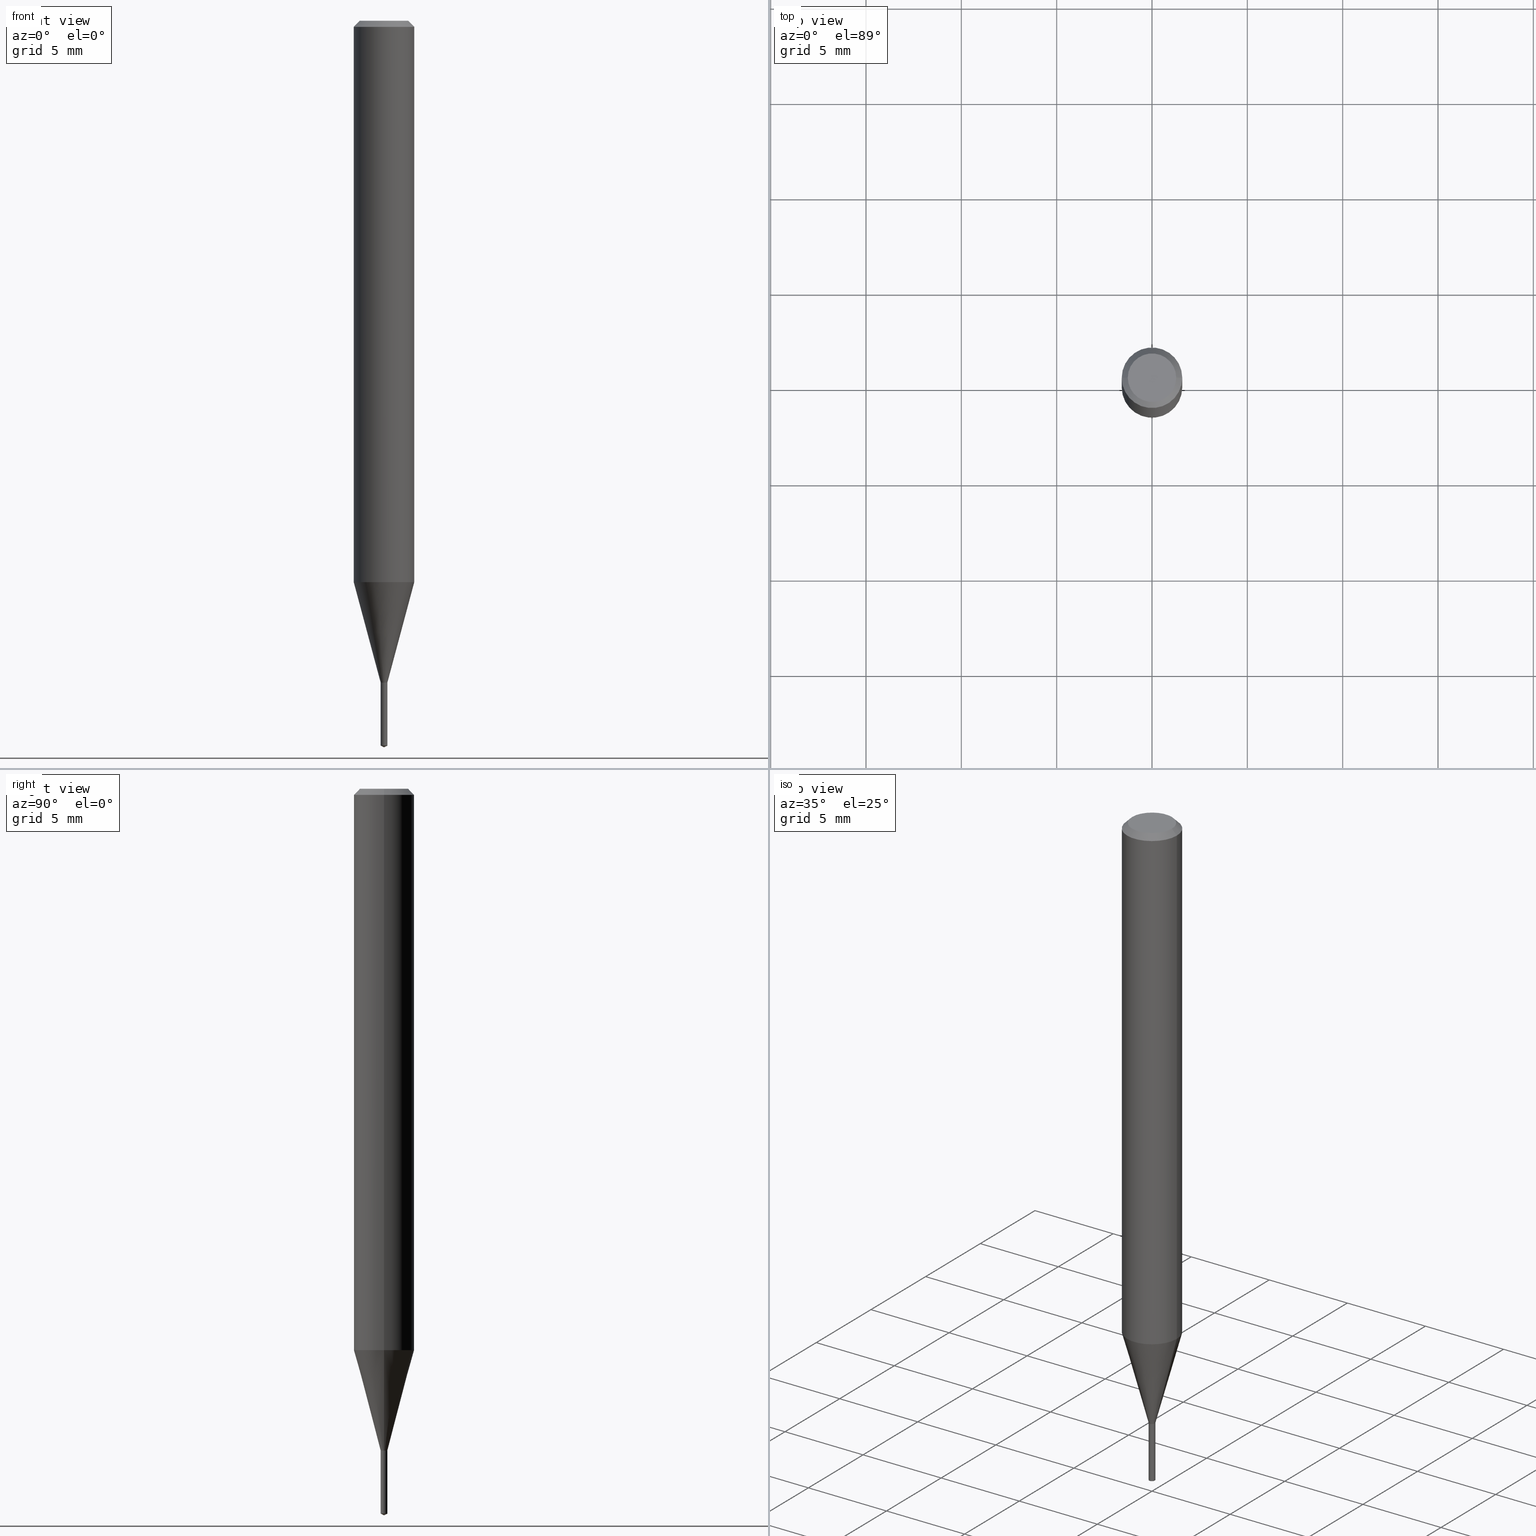
[diagram: canonical four-view strip — front | top / right | iso, engineering-drawing reading convention]
A machine part, canonical four-view strip (front | top / right | iso — engineering-drawing reading convention). The complete STEP part file that produces these views, byte-faithful:
ISO-10303-21;
HEADER;
FILE_DESCRIPTION (( 'STEP AP203' ),
    '1' );
FILE_NAME ('07119.STEP',
    '2024-04-23T19:33:58',
    ( '' ),
    ( '' ),
    'SwSTEP 2.0',
    'SolidWorks 2023',
    '' );
FILE_SCHEMA (( 'CONFIG_CONTROL_DESIGN' ));
ENDSEC;

DATA;
#1 = CARTESIAN_POINT ( 'NONE',  ( 2.983471943545866670E-29, -4.259607233388637524E-15, -1.220000000000000195 ) ) ;
#2 = ORIENTED_EDGE ( 'NONE', *, *, #479, .F. ) ;
#3 = CARTESIAN_POINT ( 'NONE',  ( 3.341977670532607904E-29, -4.771458397663042881E-15, -1.366600000000000037 ) ) ;
#4 = ORIENTED_EDGE ( 'NONE', *, *, #422, .T. ) ;
#5 = PLANE ( 'NONE',  #402 ) ;
#6 = AXIS2_PLACEMENT_3D ( 'NONE', #249, #255, #145 ) ;
#7 = LOCAL_TIME ( 15, 33, 58.00000000000000000, #40 ) ;
#8 = EDGE_CURVE ( 'NONE', #151, #163, #463, .T. ) ;
#9 = CARTESIAN_POINT ( 'NONE',  ( 2.983471943545866670E-29, -4.259607233388637524E-15, -1.220000000000000195 ) ) ;
#10 = DIRECTION ( 'NONE',  ( -6.982962677686265922E-15, -1.000000000000000000, 0.000000000000000000 ) ) ;
#11 = CIRCLE ( 'NONE', #220, 0.06250000000000013878 ) ;
#12 =( NAMED_UNIT ( * ) SI_UNIT ( $, .STERADIAN. ) SOLID_ANGLE_UNIT ( ) );
#13 = ADVANCED_FACE ( 'NONE', ( #283 ), #71, .T. ) ;
#14 = ORIENTED_EDGE ( 'NONE', *, *, #219, .T. ) ;
#15 = DIRECTION ( 'NONE',  ( 2.445468806185136597E-29, -3.491481338843145583E-15, -1.000000000000000000 ) ) ;
#16 = ORIENTED_EDGE ( 'NONE', *, *, #289, .T. ) ;
#17 = MANIFOLD_SOLID_BREP ( 'Body-Move/Copy2[2]', #156 ) ;
#18 = MANIFOLD_SOLID_BREP ( 'Body-Move/Copy2[1]', #354 ) ;
#19 =( CONVERSION_BASED_UNIT ( 'INCH', #121 ) LENGTH_UNIT ( ) NAMED_UNIT ( #333 ) );
#20 = ADVANCED_FACE ( 'NONE', ( #397 ), #376, .T. ) ;
#21 = CARTESIAN_POINT ( 'NONE',  ( -0.006899999999999999883, -4.722430948895596634E-15, -1.366600000000000037 ) ) ;
#22 = VECTOR ( 'NONE', #215, 39.37007874015748143 ) ;
#23 = ORIENTED_EDGE ( 'NONE', *, *, #178, .F. ) ;
#24 = PERSON_AND_ORGANIZATION_ROLE ( 'design_owner' ) ;
#25 = ADVANCED_FACE ( 'NONE', ( #486 ), #30, .T. ) ;
#26 = DIRECTION ( 'NONE',  ( -2.445468806185136597E-29, 3.491481338843145583E-15, 1.000000000000000000 ) ) ;
#27 = ORIENTED_EDGE ( 'NONE', *, *, #8, .F. ) ;
#28 = LINE ( 'NONE', #212, #22 ) ;
#29 = AXIS2_PLACEMENT_3D ( 'NONE', #316, #462, #242 ) ;
#30 = CYLINDRICAL_SURFACE ( 'NONE', #61, 0.006899999999999999883 ) ;
#31 = APPROVAL ( #410, 'UNSPECIFIED' ) ;
#32 = FACE_OUTER_BOUND ( 'NONE', #133, .T. ) ;
#33 = CARTESIAN_POINT ( 'NONE',  ( 4.902744876748351391E-17, 0.006899999999994774029, -1.496782477158730584 ) ) ;
#34 = APPROVAL_ROLE ( '' ) ;
#35 = EDGE_CURVE ( 'NONE', #97, #432, #111, .T. ) ;
#36 = DIRECTION ( 'NONE',  ( -2.445468806185136597E-29, 3.491481338843145583E-15, 1.000000000000000000 ) ) ;
#37 = ORIENTED_EDGE ( 'NONE', *, *, #323, .T. ) ;
#38 = FACE_OUTER_BOUND ( 'NONE', #379, .T. ) ;
#39 = AXIS2_PLACEMENT_3D ( 'NONE', #305, #236, #237 ) ;
#40 = COORDINATED_UNIVERSAL_TIME_OFFSET ( 5, 0, .BEHIND. ) ;
#41 = ORIENTED_EDGE ( 'NONE', *, *, #428, .T. ) ;
#42 = CYLINDRICAL_SURFACE ( 'NONE', #340, 0.06250000000000006939 ) ;
#43 = CARTESIAN_POINT ( 'NONE',  ( -0.006899999999999999883, 4.902744876744691200E-17, -3.394065212275885310E-31 ) ) ;
#44 = CALENDAR_DATE ( 2024, 23, 4 ) ;
#45 = EDGE_LOOP ( 'NONE', ( #420, #96, #326, #433 ) ) ;
#46 = CARTESIAN_POINT ( 'NONE',  ( 3.659342035388792299E-29, -5.227409865130129213E-15, -1.496782477158730584 ) ) ;
#47 = AXIS2_PLACEMENT_3D ( 'NONE', #222, #102, #437 ) ;
#48 = AXIS2_PLACEMENT_3D ( 'NONE', #298, #364, #404 ) ;
#49 = DIRECTION ( 'NONE',  ( -2.445468806185136597E-29, 3.491481338843145583E-15, 1.000000000000000000 ) ) ;
#50 = ADVANCED_FACE ( 'NONE', ( #306 ), #139, .F. ) ;
#51 = ORIENTED_EDGE ( 'NONE', *, *, #35, .T. ) ;
#52 = CIRCLE ( 'NONE', #339, 0.006899999999999999883 ) ;
#53 = CONICAL_SURFACE ( 'NONE', #168, 84.42940631927417883, 1.134464013796315118 ) ;
#54 = DIRECTION ( 'NONE',  ( -2.445468806185136877E-29, 3.491481338843145188E-15, 1.000000000000000000 ) ) ;
#55 = EDGE_LOOP ( 'NONE', ( #362, #136, #91, #436 ) ) ;
#56 = CARTESIAN_POINT ( 'NONE',  ( -0.06250000000000006939, 4.440892098500631092E-16, -3.074334431409319267E-30 ) ) ;
#57 = ORIENTED_EDGE ( 'NONE', *, *, #239, .T. ) ;
#58 = EDGE_CURVE ( 'NONE', #189, #451, #334, .T. ) ;
#59 = LINE ( 'NONE', #126, #477 ) ;
#60 = VERTEX_POINT ( 'NONE', #33 ) ;
#61 = AXIS2_PLACEMENT_3D ( 'NONE', #1, #142, #481 ) ;
#62 = DIRECTION ( 'NONE',  ( -1.000000000000000000, 6.982962677686265922E-15, -4.876176775795935793E-29 ) ) ;
#63 = AXIS2_PLACEMENT_3D ( 'NONE', #138, #366, #173 ) ;
#64 = VERTEX_POINT ( 'NONE', #73 ) ;
#65 = PERSON_AND_ORGANIZATION ( #247, #85 ) ;
#66 = PLANE ( 'NONE',  #196 ) ;
#67 = COORDINATED_UNIVERSAL_TIME_OFFSET ( 5, 0, .BEHIND. ) ;
#68 = DIRECTION ( 'NONE',  ( 1.000000000000000000, -6.982962677686300632E-15, 0.000000000000000000 ) ) ;
#69 = DIRECTION ( 'NONE',  ( -2.445468806185136597E-29, 3.491481338843145583E-15, 1.000000000000000000 ) ) ;
#70 = FACE_OUTER_BOUND ( 'NONE', #365, .T. ) ;
#71 = CONICAL_SURFACE ( 'NONE', #209, 0.06250000000000001388, 0.7853981633974452814 ) ;
#72 = LOCAL_TIME ( 15, 33, 58.00000000000000000, #267 ) ;
#73 = CARTESIAN_POINT ( 'NONE',  ( -4.818244247600540149E-17, -0.006900000000004260364, -1.220000000000000195 ) ) ;
#74 = CARTESIAN_POINT ( 'NONE',  ( 2.983471943545866670E-29, -4.259607233388637524E-15, -1.219999999999999973 ) ) ;
#75 = ORIENTED_EDGE ( 'NONE', *, *, #199, .F. ) ;
#76 = PLANE ( 'NONE',  #105 ) ;
#77 = ORIENTED_EDGE ( 'NONE', *, *, #199, .T. ) ;
#78 = CARTESIAN_POINT ( 'NONE',  ( -0.06250000000000001388, -1.601217023492531536E-15, -0.01250000000000008570 ) ) ;
#79 = LINE ( 'NONE', #311, #439 ) ;
#80 = PERSON_AND_ORGANIZATION_ROLE ( 'classification_officer' ) ;
#81 = VERTEX_POINT ( 'NONE', #180 ) ;
#82 = CARTESIAN_POINT ( 'NONE',  ( -4.818244247600540149E-17, -0.006900000000004260364, -1.220000000000000195 ) ) ;
#83 = CC_DESIGN_PERSON_AND_ORGANIZATION_ASSIGNMENT ( #423, #108, ( #157 ) ) ;
#84 = FACE_OUTER_BOUND ( 'NONE', #346, .T. ) ;
#85 = ORGANIZATION ( 'UNSPECIFIED', 'UNSPECIFIED', '' ) ;
#86 = CARTESIAN_POINT ( 'NONE',  ( 0.06250000000000001388, -4.800786840909313294E-16, -0.01250000000000008570 ) ) ;
#87 = VERTEX_POINT ( 'NONE', #412 ) ;
#88 =( LENGTH_UNIT ( ) NAMED_UNIT ( * ) SI_UNIT ( $, .METRE. ) );
#89 = PRODUCT ( '07119', '07119', '', ( #253 ) ) ;
#90 = DIRECTION ( 'NONE',  ( -2.441881793894503225E-29, 3.496618144603393422E-15, 1.000000000000000000 ) ) ;
#91 = ORIENTED_EDGE ( 'NONE', *, *, #58, .T. ) ;
#92 = LOCAL_TIME ( 15, 33, 58.00000000000000000, #442 ) ;
#93 = ORIENTED_EDGE ( 'NONE', *, *, #392, .T. ) ;
#94 = DIRECTION ( 'NONE',  ( -2.445468806185136597E-29, 3.491481338843145583E-15, 1.000000000000000000 ) ) ;
#95 = EDGE_CURVE ( 'NONE', #163, #440, #98, .T. ) ;
#96 = ORIENTED_EDGE ( 'NONE', *, *, #251, .T. ) ;
#97 = VERTEX_POINT ( 'NONE', #467 ) ;
#98 = CIRCLE ( 'NONE', #270, 0.06250000000000001388 ) ;
#99 = CARTESIAN_POINT ( 'NONE',  ( 0.000000000000000000, 0.000000000000000000, 0.000000000000000000 ) ) ;
#100 = AXIS2_PLACEMENT_3D ( 'NONE', #150, #427, #10 ) ;
#101 = PERSON_AND_ORGANIZATION_ROLE ( 'creator' ) ;
#102 = DIRECTION ( 'NONE',  ( -2.445468806185136597E-29, 3.491481338843145583E-15, 1.000000000000000000 ) ) ;
#103 = FACE_OUTER_BOUND ( 'NONE', #304, .T. ) ;
#104 = DIRECTION ( 'NONE',  ( 1.000000000000000000, -6.982962677686266711E-15, 4.876176775795935793E-29 ) ) ;
#105 = AXIS2_PLACEMENT_3D ( 'NONE', #9, #227, #271 ) ;
#106 = APPLICATION_CONTEXT ( 'configuration controlled 3d designs of mechanical parts and assemblies' ) ;
#107 = ADVANCED_FACE ( 'NONE', ( #426 ), #281, .T. ) ;
#108 = PERSON_AND_ORGANIZATION_ROLE ( 'design_supplier' ) ;
#109 = EDGE_LOOP ( 'NONE', ( #192, #235, #300 ) ) ;
#110 = DIRECTION ( 'NONE',  ( 1.000000000000000000, -6.982962677686300632E-15, 0.000000000000000000 ) ) ;
#111 = LINE ( 'NONE', #216, #408 ) ;
#112 = ORIENTED_EDGE ( 'NONE', *, *, #95, .T. ) ;
#113 = FACE_OUTER_BOUND ( 'NONE', #149, .T. ) ;
#114 = ORIENTED_EDGE ( 'NONE', *, *, #263, .T. ) ;
#115 = EDGE_CURVE ( 'NONE', #144, #324, #52, .T. ) ;
#116 = CARTESIAN_POINT ( 'NONE',  ( 0.006899999999999999883, -4.306043935195251097E-15, -1.219500000000000028 ) ) ;
#117 = AXIS2_PLACEMENT_3D ( 'NONE', #223, #36, #406 ) ;
#118 = ORIENTED_EDGE ( 'NONE', *, *, #348, .T. ) ;
#119 = DIRECTION ( 'NONE',  ( -2.445468806185136597E-29, 3.491481338843145583E-15, 1.000000000000000000 ) ) ;
#120 = CARTESIAN_POINT ( 'NONE',  ( 2.116565862218725897E-28, 2.177831895622387060E-14, -1.220000000000000195 ) ) ;
#121 = LENGTH_MEASURE_WITH_UNIT ( LENGTH_MEASURE( 0.02539999999999999897 ), #88 );
#122 = VECTOR ( 'NONE', #485, 39.37007874015748143 ) ;
#123 = CONICAL_SURFACE ( 'NONE', #322, 0.006400000000000001174, 0.7853981633975486432 ) ;
#124 = APPLICATION_PROTOCOL_DEFINITION ( 'international standard', 'config_control_design', 1994, #106 ) ;
#125 = EDGE_LOOP ( 'NONE', ( #27, #268, #93, #401 ) ) ;
#126 = CARTESIAN_POINT ( 'NONE',  ( 0.06250000000000006939, -4.364351673553921624E-16, 3.047610484872463374E-30 ) ) ;
#127 = ORIENTED_EDGE ( 'NONE', *, *, #239, .F. ) ;
#128 = VECTOR ( 'NONE', #429, 39.37007874015748143 ) ;
#129 = APPROVAL_PERSON_ORGANIZATION ( #303, #396, #148 ) ;
#130 = CC_DESIGN_PERSON_AND_ORGANIZATION_ASSIGNMENT ( #188, #454, ( #157 ) ) ;
#131 = DIRECTION ( 'NONE',  ( -2.441881793894503225E-29, 3.496618144603393422E-15, 1.000000000000000000 ) ) ;
#132 = ORIENTED_EDGE ( 'NONE', *, *, #251, .F. ) ;
#133 = EDGE_LOOP ( 'NONE', ( #114, #41 ) ) ;
#134 = APPLICATION_PROTOCOL_DEFINITION ( 'international standard', 'config_control_design', 1994, #353 ) ;
#135 = CARTESIAN_POINT ( 'NONE',  ( 3.341977670532607904E-29, -4.771458397663042881E-15, -1.366600000000000037 ) ) ;
#136 = ORIENTED_EDGE ( 'NONE', *, *, #293, .T. ) ;
#137 = EDGE_CURVE ( 'NONE', #324, #321, #288, .T. ) ;
#138 = CARTESIAN_POINT ( 'NONE',  ( 2.834537941417392274E-29, -4.046968949949650715E-15, -1.159097975099176336 ) ) ;
#139 = CYLINDRICAL_SURFACE ( 'NONE', #200, 0.006899999999999999883 ) ;
#140 = LINE ( 'NONE', #171, #320 ) ;
#141 = DIRECTION ( 'NONE',  ( -2.441881793894503225E-29, 3.496618144603393422E-15, 1.000000000000000000 ) ) ;
#142 = DIRECTION ( 'NONE',  ( -2.441881793894503225E-29, 3.496618144603393422E-15, 1.000000000000000000 ) ) ;
#143 = APPROVAL_STATUS ( 'not_yet_approved' ) ;
#144 = VERTEX_POINT ( 'NONE', #314 ) ;
#145 = DIRECTION ( 'NONE',  ( 1.000000000000000000, -6.982962677686300632E-15, 0.000000000000000000 ) ) ;
#146 = CC_DESIGN_PERSON_AND_ORGANIZATION_ASSIGNMENT ( #211, #24, ( #89 ) ) ;
#147 = APPROVAL_PERSON_ORGANIZATION ( #184, #182, #337 ) ;
#148 = APPROVAL_ROLE ( '' ) ;
#149 = EDGE_LOOP ( 'NONE', ( #16, #290, #317, #373 ) ) ;
#150 = CARTESIAN_POINT ( 'NONE',  ( 2.983471943545866670E-29, -4.259607233388637524E-15, -1.220000000000000195 ) ) ;
#151 = VERTEX_POINT ( 'NONE', #465 ) ;
#152 = CARTESIAN_POINT ( 'NONE',  ( -9.246987965394727264E-28, 1.324234713634213705E-13, 37.87007874015748143 ) ) ;
#153 = EDGE_CURVE ( 'NONE', #464, #64, #438, .T. ) ;
#154 = EDGE_LOOP ( 'NONE', ( #250, #4, #292, #241 ) ) ;
#155 = DIRECTION ( 'NONE',  ( 1.000000000000000000, -6.982962677686266711E-15, 4.876176775795935793E-29 ) ) ;
#156 = CLOSED_SHELL ( 'NONE', ( #308, #20, #312, #248, #50, #434, #382, #243, #13, #256, #327, #165 ) ) ;
#157 = PRODUCT_DEFINITION_FORMATION_WITH_SPECIFIED_SOURCE ( 'ANY', '', #89, .NOT_KNOWN. ) ;
#158 = ORIENTED_EDGE ( 'NONE', *, *, #323, .F. ) ;
#159 = DIRECTION ( 'NONE',  ( -2.441881793894503225E-29, 3.496618144603393422E-15, 1.000000000000000000 ) ) ;
#160 = DIRECTION ( 'NONE',  ( -6.982962677686265133E-15, -1.000000000000000000, 0.000000000000000000 ) ) ;
#161 = CIRCLE ( 'NONE', #466, 0.006899999999999999883 ) ;
#162 = CARTESIAN_POINT ( 'NONE',  ( 3.341977670532607904E-29, -4.771458397663042881E-15, -1.366600000000000037 ) ) ;
#163 = VERTEX_POINT ( 'NONE', #86 ) ;
#164 = DIRECTION ( 'NONE',  ( -1.000000000000000000, 6.982962677686265922E-15, 0.000000000000000000 ) ) ;
#165 = ADVANCED_FACE ( 'NONE', ( #325 ), #361, .T. ) ;
#166 = ORIENTED_EDGE ( 'NONE', *, *, #153, .T. ) ;
#167 = CIRCLE ( 'NONE', #419, 0.006900000000000001618 ) ;
#168 = AXIS2_PLACEMENT_3D ( 'NONE', #152, #307, #383 ) ;
#169 = EDGE_CURVE ( 'NONE', #324, #144, #259, .T. ) ;
#170 = ORIENTED_EDGE ( 'NONE', *, *, #169, .T. ) ;
#171 = CARTESIAN_POINT ( 'NONE',  ( 0.006899999999999999883, -4.818244247603524262E-17, 3.364561975299196072E-31 ) ) ;
#172 = ORIENTED_EDGE ( 'NONE', *, *, #137, .F. ) ;
#173 = DIRECTION ( 'NONE',  ( 1.000000000000000000, -6.982962677686262766E-15, 0.000000000000000000 ) ) ;
#174 = CIRCLE ( 'NONE', #6, 0.006400000000000001174 ) ;
#175 = APPROVAL_PERSON_ORGANIZATION ( #65, #31, #34 ) ;
#176 = DIRECTION ( 'NONE',  ( 1.000000000000000000, -6.982962677686262766E-15, 0.000000000000000000 ) ) ;
#177 = DIRECTION ( 'NONE',  ( 1.000000000000000000, -6.982962677686267499E-15, 4.876176775795936353E-29 ) ) ;
#178 = EDGE_CURVE ( 'NONE', #246, #60, #295, .T. ) ;
#179 = CARTESIAN_POINT ( 'NONE',  ( 3.659342035388792299E-29, -5.227409865130129213E-15, -1.496782477158730584 ) ) ;
#180 = CARTESIAN_POINT ( 'NONE',  ( -4.818244247599865920E-17, -0.006900000000005230075, -1.496782477158730584 ) ) ;
#181 = CALENDAR_DATE ( 2024, 23, 4 ) ;
#182 = APPROVAL ( #193, 'UNSPECIFIED' ) ;
#183 = CARTESIAN_POINT ( 'NONE',  ( 3.671651748258232089E-29, -5.232393410850085965E-15, -1.500000000000000222 ) ) ;
#184 = PERSON_AND_ORGANIZATION ( #247, #85 ) ;
#185 = ORIENTED_EDGE ( 'NONE', *, *, #392, .F. ) ;
#186 = CARTESIAN_POINT ( 'NONE',  ( 2.983471943545866670E-29, -4.259607233388637524E-15, -1.219999999999999973 ) ) ;
#187 = CONICAL_SURFACE ( 'NONE', #39, 84.42940631927417883, 1.134464013796315118 ) ;
#188 = PERSON_AND_ORGANIZATION ( #247, #85 ) ;
#189 = VERTEX_POINT ( 'NONE', #336 ) ;
#190 = LINE ( 'NONE', #82, #252 ) ;
#191 = DIRECTION ( 'NONE',  ( -2.445468806185136597E-29, 3.491481338843145583E-15, 1.000000000000000000 ) ) ;
#192 = ORIENTED_EDGE ( 'NONE', *, *, #266, .F. ) ;
#193 = APPROVAL_STATUS ( 'not_yet_approved' ) ;
#194 = CARTESIAN_POINT ( 'NONE',  ( -0.06250000000000013878, -3.602879740099588099E-15, -1.159097975099176336 ) ) ;
#195 = AXIS2_PLACEMENT_3D ( 'NONE', #257, #371, #291 ) ;
#196 = AXIS2_PLACEMENT_3D ( 'NONE', #411, #475, #62 ) ;
#197 = EDGE_CURVE ( 'NONE', #432, #451, #400, .T. ) ;
#198 = DIRECTION ( 'NONE',  ( -2.445468806185136877E-29, 3.491481338843145188E-15, 1.000000000000000000 ) ) ;
#199 = EDGE_CURVE ( 'NONE', #321, #87, #11, .T. ) ;
#200 = AXIS2_PLACEMENT_3D ( 'NONE', #405, #69, #177 ) ;
#201 = EDGE_LOOP ( 'NONE', ( #233, #245, #112, #185 ) ) ;
#202 = CONICAL_SURFACE ( 'NONE', #377, 0.006899999999999999883, 0.2617993877991570129 ) ;
#203 = PRODUCT_DEFINITION_SHAPE ( 'NONE', 'NONE',  #258 ) ;
#204 = ORIENTED_EDGE ( 'NONE', *, *, #289, .F. ) ;
#205 = DIRECTION ( 'NONE',  ( 1.000000000000000000, -6.982962677686234367E-15, 0.000000000000000000 ) ) ;
#206 = CARTESIAN_POINT ( 'NONE',  ( 3.056836007731441853E-31, -4.364351673553962300E-17, -0.01250000000000008570 ) ) ;
#207 = CARTESIAN_POINT ( 'NONE',  ( 4.902744876748356938E-17, 0.006899999999995740270, -1.220000000000000195 ) ) ;
#208 = EDGE_LOOP ( 'NONE', ( #226, #14, #468, #389 ) ) ;
#209 = AXIS2_PLACEMENT_3D ( 'NONE', #358, #15, #164 ) ;
#210 = CC_DESIGN_APPROVAL ( #182, ( #157 ) ) ;
#211 = PERSON_AND_ORGANIZATION ( #247, #85 ) ;
#212 = CARTESIAN_POINT ( 'NONE',  ( 3.662822690841755118E-29, -5.244927216905089936E-15, -1.500000000000000222 ) ) ;
#213 = UNCERTAINTY_MEASURE_WITH_UNIT (LENGTH_MEASURE( 1.000000000000000082E-05 ), #19, 'distance_accuracy_value', 'NONE');
#214 = EDGE_LOOP ( 'NONE', ( #127, #357 ) ) ;
#215 = DIRECTION ( 'NONE',  ( -6.328713451373372534E-15, -0.9063077870366488265, 0.4226182617407018283 ) ) ;
#216 = CARTESIAN_POINT ( 'NONE',  ( -0.006400000000000001174, -4.214132498299990598E-15, -1.219999999999999973 ) ) ;
#217 = CALENDAR_DATE ( 2024, 23, 4 ) ;
#218 = FACE_OUTER_BOUND ( 'NONE', #484, .T. ) ;
#219 = EDGE_CURVE ( 'NONE', #60, #464, #328, .T. ) ;
#220 = AXIS2_PLACEMENT_3D ( 'NONE', #261, #332, #176 ) ;
#221 = AXIS2_PLACEMENT_3D ( 'NONE', #46, #159, #160 ) ;
#222 = CARTESIAN_POINT ( 'NONE',  ( 2.982249209142773869E-29, -4.257861492719216809E-15, -1.219500000000000028 ) ) ;
#223 = CARTESIAN_POINT ( 'NONE',  ( 3.341977670532607904E-29, -4.771458397663042881E-15, -1.366600000000000037 ) ) ;
#224 = CARTESIAN_POINT ( 'NONE',  ( 3.056836007731441853E-31, -4.364351673553962300E-17, -0.01250000000000008570 ) ) ;
#225 = DATE_TIME_ROLE ( 'creation_date' ) ;
#226 = ORIENTED_EDGE ( 'NONE', *, *, #384, .T. ) ;
#227 = DIRECTION ( 'NONE',  ( 2.441881793894502945E-29, -3.496618144603393422E-15, -1.000000000000000000 ) ) ;
#228 = DIRECTION ( 'NONE',  ( 2.445468806185136597E-29, -3.491481338843145583E-15, -1.000000000000000000 ) ) ;
#229 = DATE_TIME_ROLE ( 'classification_date' ) ;
#230 = ORIENTED_EDGE ( 'NONE', *, *, #285, .T. ) ;
#231 = CARTESIAN_POINT ( 'NONE',  ( 0.000000000000000000, 0.000000000000000000, 0.000000000000000000 ) ) ;
#232 = CIRCLE ( 'NONE', #48, 0.06250000000000001388 ) ;
#233 = ORIENTED_EDGE ( 'NONE', *, *, #428, .F. ) ;
#234 = LINE ( 'NONE', #457, #356 ) ;
#235 = ORIENTED_EDGE ( 'NONE', *, *, #178, .T. ) ;
#236 = DIRECTION ( 'NONE',  ( -2.441881793894503225E-29, 3.496618144603393422E-15, 1.000000000000000000 ) ) ;
#237 = DIRECTION ( 'NONE',  ( -6.982962677686266711E-15, -1.000000000000000000, 3.520397390770460575E-15 ) ) ;
#238 = VECTOR ( 'NONE', #435, 39.37007874015748854 ) ;
#239 = EDGE_CURVE ( 'NONE', #189, #97, #174, .T. ) ;
#240 = EDGE_CURVE ( 'NONE', #144, #451, #140, .T. ) ;
#241 = ORIENTED_EDGE ( 'NONE', *, *, #240, .F. ) ;
#242 = DIRECTION ( 'NONE',  ( 1.000000000000000000, 0.000000000000000000, 0.000000000000000000 ) ) ;
#243 = ADVANCED_FACE ( 'NONE', ( #70 ), #302, .T. ) ;
#244 = ORIENTED_EDGE ( 'NONE', *, *, #275, .F. ) ;
#245 = ORIENTED_EDGE ( 'NONE', *, *, #8, .T. ) ;
#246 = VERTEX_POINT ( 'NONE', #369 ) ;
#247 = PERSON ( 'UNSPECIFIED', 'UNSPECIFIED', 'UNSPECIFIED', ('UNSPECIFIED'), ('UNSPECIFIED'), ('UNSPECIFIED') ) ;
#248 = ADVANCED_FACE ( 'NONE', ( #103 ), #315, .T. ) ;
#249 = CARTESIAN_POINT ( 'NONE',  ( 2.983471943545866670E-29, -4.259607233388637524E-15, -1.219999999999999973 ) ) ;
#250 = ORIENTED_EDGE ( 'NONE', *, *, #169, .F. ) ;
#251 = EDGE_CURVE ( 'NONE', #60, #81, #167, .T. ) ;
#252 = VECTOR ( 'NONE', #414, 39.37007874015748143 ) ;
#253 = MECHANICAL_CONTEXT ( 'NONE', #106, 'mechanical' ) ;
#254 = DIRECTION ( 'NONE',  ( -2.441881793894502945E-29, 3.496618144603393422E-15, 1.000000000000000000 ) ) ;
#255 = DIRECTION ( 'NONE',  ( -2.445468806185136597E-29, 3.491481338843145583E-15, 1.000000000000000000 ) ) ;
#256 = ADVANCED_FACE ( 'NONE', ( #32 ), #66, .F. ) ;
#257 = CARTESIAN_POINT ( 'NONE',  ( 2.983471943545866670E-29, -4.259607233388637524E-15, -1.219999999999999973 ) ) ;
#258 = PRODUCT_DEFINITION ( 'UNKNOWN', '', #157, #282 ) ;
#259 = CIRCLE ( 'NONE', #117, 0.006899999999999999883 ) ;
#260 = CIRCLE ( 'NONE', #221, 0.006900000000000001618 ) ;
#261 = CARTESIAN_POINT ( 'NONE',  ( 2.834537941417392274E-29, -4.046968949949650715E-15, -1.159097975099176336 ) ) ;
#262 = DIRECTION ( 'NONE',  ( -0.7071067811866184050, 7.493145998870609751E-15, 0.7071067811864765185 ) ) ;
#263 = EDGE_CURVE ( 'NONE', #359, #151, #272, .T. ) ;
#264 = EDGE_LOOP ( 'NONE', ( #118, #166 ) ) ;
#265 = DIRECTION ( 'NONE',  ( -2.438088387897960049E-29, 3.491481338843145188E-15, 1.000000000000000000 ) ) ;
#266 = EDGE_CURVE ( 'NONE', #246, #81, #28, .T. ) ;
#267 = COORDINATED_UNIVERSAL_TIME_OFFSET ( 5, 0, .BEHIND. ) ;
#268 = ORIENTED_EDGE ( 'NONE', *, *, #263, .F. ) ;
#269 = DIRECTION ( 'NONE',  ( -0.7071067811865453523, 2.468850131082234184E-15, -0.7071067811865496822 ) ) ;
#270 = AXIS2_PLACEMENT_3D ( 'NONE', #224, #191, #375 ) ;
#271 = DIRECTION ( 'NONE',  ( 6.982962677686265922E-15, 1.000000000000000000, -3.496618144603393422E-15 ) ) ;
#272 = CIRCLE ( 'NONE', #380, 0.04999999999999999584 ) ;
#273 = APPROVAL_DATE_TIME ( #415, #182 ) ;
#274 = DIRECTION ( 'NONE',  ( -2.445468806185136597E-29, 3.491481338843145583E-15, 1.000000000000000000 ) ) ;
#275 = EDGE_CURVE ( 'NONE', #440, #163, #232, .T. ) ;
#276 = CARTESIAN_POINT ( 'NONE',  ( -0.04999999999999999584, 3.709698922520826725E-16, 3.380025165621512536E-19 ) ) ;
#277 = CC_DESIGN_DATE_AND_TIME_ASSIGNMENT ( #385, #229, ( #284 ) ) ;
#278 = VECTOR ( 'NONE', #407, 39.37007874015748854 ) ;
#279 = CIRCLE ( 'NONE', #63, 0.06250000000000013878 ) ;
#280 = CARTESIAN_POINT ( 'NONE',  ( 0.06250000000000001388, -4.724246415962604812E-16, -0.01250000000000008570 ) ) ;
#281 = CYLINDRICAL_SURFACE ( 'NONE', #476, 0.006899999999999999883 ) ;
#282 = DESIGN_CONTEXT ( 'detailed design', #353, 'design' ) ;
#283 = FACE_OUTER_BOUND ( 'NONE', #125, .T. ) ;
#284 = SECURITY_CLASSIFICATION ( '', '', #372 ) ;
#285 = EDGE_CURVE ( 'NONE', #451, #432, #161, .T. ) ;
#286 = ORIENTED_EDGE ( 'NONE', *, *, #285, .F. ) ;
#287 = DATE_AND_TIME ( #217, #363 ) ;
#288 = LINE ( 'NONE', #21, #238 ) ;
#289 = EDGE_CURVE ( 'NONE', #87, #321, #279, .T. ) ;
#290 = ORIENTED_EDGE ( 'NONE', *, *, #479, .T. ) ;
#291 = DIRECTION ( 'NONE',  ( 1.000000000000000000, -6.982962677686300632E-15, 0.000000000000000000 ) ) ;
#292 = ORIENTED_EDGE ( 'NONE', *, *, #197, .T. ) ;
#293 = EDGE_CURVE ( 'NONE', #97, #189, #301, .T. ) ;
#294 = APPROVAL_DATE_TIME ( #469, #31 ) ;
#295 = LINE ( 'NONE', #183, #122 ) ;
#296 = DIRECTION ( 'NONE',  ( -2.445468806185136597E-29, 3.491481338843145583E-15, 1.000000000000000000 ) ) ;
#297 = CARTESIAN_POINT ( 'NONE',  ( 0.006400000000000001174, -4.304298194525829593E-15, -1.219999999999999973 ) ) ;
#298 = CARTESIAN_POINT ( 'NONE',  ( 3.056836007731441853E-31, -4.364351673553962300E-17, -0.01250000000000008570 ) ) ;
#299 = COORDINATED_UNIVERSAL_TIME_OFFSET ( 5, 0, .BEHIND. ) ;
#300 = ORIENTED_EDGE ( 'NONE', *, *, #384, .F. ) ;
#301 = CIRCLE ( 'NONE', #350, 0.006400000000000001174 ) ;
#302 = CYLINDRICAL_SURFACE ( 'NONE', #447, 0.06250000000000006939 ) ;
#303 = PERSON_AND_ORGANIZATION ( #247, #85 ) ;
#304 = EDGE_LOOP ( 'NONE', ( #344, #319, #204, #158 ) ) ;
#305 = CARTESIAN_POINT ( 'NONE',  ( -9.246987965394727264E-28, 1.324234713634213705E-13, 37.87007874015748143 ) ) ;
#306 = FACE_OUTER_BOUND ( 'NONE', #154, .T. ) ;
#307 = DIRECTION ( 'NONE',  ( -2.441881793894503225E-29, 3.496618144603393422E-15, 1.000000000000000000 ) ) ;
#308 = ADVANCED_FACE ( 'NONE', ( #218 ), #123, .T. ) ;
#309 = DIRECTION ( 'NONE',  ( 0.2588190451025280114, 1.565188264969568522E-15, 0.9659258262890662028 ) ) ;
#310 = CIRCLE ( 'NONE', #460, 0.04999999999999999584 ) ;
#311 = CARTESIAN_POINT ( 'NONE',  ( -0.06250000000000001388, 3.927916506198521080E-16, -0.01250000000000008570 ) ) ;
#312 = ADVANCED_FACE ( 'NONE', ( #113 ), #42, .T. ) ;
#313 = ADVANCED_BREP_SHAPE_REPRESENTATION ( '07119', ( #18, #17, #29 ), #391 ) ;
#314 = CARTESIAN_POINT ( 'NONE',  ( 0.006899999999999999883, -4.819640840139077957E-15, -1.366600000000000037 ) ) ;
#315 = CONICAL_SURFACE ( 'NONE', #487, 0.006899999999999999883, 0.2617993877991570129 ) ;
#316 = CARTESIAN_POINT ( 'NONE',  ( 0.000000000000000000, 0.000000000000000000, 0.000000000000000000 ) ) ;
#317 = ORIENTED_EDGE ( 'NONE', *, *, #95, .F. ) ;
#318 = CARTESIAN_POINT ( 'NONE',  ( 2.983471943545866670E-29, -4.259607233388637524E-15, -1.220000000000000195 ) ) ;
#319 = ORIENTED_EDGE ( 'NONE', *, *, #137, .T. ) ;
#320 = VECTOR ( 'NONE', #367, 39.37007874015748143 ) ;
#321 = VERTEX_POINT ( 'NONE', #194 ) ;
#322 = AXIS2_PLACEMENT_3D ( 'NONE', #186, #274, #110 ) ;
#323 = EDGE_CURVE ( 'NONE', #144, #87, #234, .T. ) ;
#324 = VERTEX_POINT ( 'NONE', #349 ) ;
#325 = FACE_OUTER_BOUND ( 'NONE', #55, .T. ) ;
#326 = ORIENTED_EDGE ( 'NONE', *, *, #330, .T. ) ;
#327 = ADVANCED_FACE ( 'NONE', ( #347 ), #5, .F. ) ;
#328 = LINE ( 'NONE', #480, #390 ) ;
#329 = AXIS2_PLACEMENT_3D ( 'NONE', #470, #131, #461 ) ;
#330 = EDGE_CURVE ( 'NONE', #81, #64, #190, .T. ) ;
#331 = VECTOR ( 'NONE', #459, 39.37007874015748143 ) ;
#332 = DIRECTION ( 'NONE',  ( -2.445468806185136597E-29, 3.491481338843145583E-15, 1.000000000000000000 ) ) ;
#333 = DIMENSIONAL_EXPONENTS ( 1.000000000000000000, 0.000000000000000000, 0.000000000000000000, 0.000000000000000000, 0.000000000000000000, 0.000000000000000000, 0.000000000000000000 ) ;
#334 = LINE ( 'NONE', #297, #278 ) ;
#335 = PERSON_AND_ORGANIZATION ( #247, #85 ) ;
#336 = CARTESIAN_POINT ( 'NONE',  ( 0.006400000000000001174, -4.304298194525829593E-15, -1.219999999999999973 ) ) ;
#337 = APPROVAL_ROLE ( '' ) ;
#338 = DIRECTION ( 'NONE',  ( -6.982962677686265133E-15, -1.000000000000000000, 0.000000000000000000 ) ) ;
#339 = AXIS2_PLACEMENT_3D ( 'NONE', #162, #94, #205 ) ;
#340 = AXIS2_PLACEMENT_3D ( 'NONE', #231, #49, #155 ) ;
#341 = CYLINDRICAL_SURFACE ( 'NONE', #409, 0.006899999999999999883 ) ;
#342 = CC_DESIGN_SECURITY_CLASSIFICATION ( #284, ( #157 ) ) ;
#343 = APPROVAL_DATE_TIME ( #450, #396 ) ;
#344 = ORIENTED_EDGE ( 'NONE', *, *, #115, .T. ) ;
#345 = DIRECTION ( 'NONE',  ( 1.000000000000000000, -6.982962677686234367E-15, 0.000000000000000000 ) ) ;
#346 = EDGE_LOOP ( 'NONE', ( #23, #471, #132 ) ) ;
#347 = FACE_OUTER_BOUND ( 'NONE', #214, .T. ) ;
#348 = EDGE_CURVE ( 'NONE', #64, #464, #431, .T. ) ;
#349 = CARTESIAN_POINT ( 'NONE',  ( -0.006899999999999999883, -4.465632496423682021E-15, -1.366600000000000037 ) ) ;
#350 = AXIS2_PLACEMENT_3D ( 'NONE', #74, #441, #68 ) ;
#351 = DIRECTION ( 'NONE',  ( -2.445468806185136597E-29, 3.491481338843145583E-15, 1.000000000000000000 ) ) ;
#352 = ADVANCED_FACE ( 'NONE', ( #490 ), #76, .F. ) ;
#353 = APPLICATION_CONTEXT ( 'configuration controlled 3d designs of mechanical parts and assemblies' ) ;
#354 = CLOSED_SHELL ( 'NONE', ( #25, #444, #360, #107, #352 ) ) ;
#355 = DIRECTION ( 'NONE',  ( -6.982962677686265922E-15, -1.000000000000000000, 0.000000000000000000 ) ) ;
#356 = VECTOR ( 'NONE', #309, 39.37007874015748854 ) ;
#357 = ORIENTED_EDGE ( 'NONE', *, *, #293, .F. ) ;
#358 = CARTESIAN_POINT ( 'NONE',  ( 3.056836007731441853E-31, -4.364351673553962300E-17, -0.01250000000000008570 ) ) ;
#359 = VERTEX_POINT ( 'NONE', #276 ) ;
#360 = ADVANCED_FACE ( 'NONE', ( #84 ), #187, .T. ) ;
#361 = CONICAL_SURFACE ( 'NONE', #195, 0.006400000000000001174, 0.7853981633975486432 ) ;
#362 = ORIENTED_EDGE ( 'NONE', *, *, #35, .F. ) ;
#363 = LOCAL_TIME ( 15, 33, 58.00000000000000000, #67 ) ;
#364 = DIRECTION ( 'NONE',  ( -2.445468806185136597E-29, 3.491481338843145583E-15, 1.000000000000000000 ) ) ;
#365 = EDGE_LOOP ( 'NONE', ( #2, #77, #394, #244 ) ) ;
#366 = DIRECTION ( 'NONE',  ( -2.445468806185136597E-29, 3.491481338843145583E-15, 1.000000000000000000 ) ) ;
#367 = DIRECTION ( 'NONE',  ( -2.445468806185136877E-29, 3.491481338843145188E-15, 1.000000000000000000 ) ) ;
#368 = CC_DESIGN_APPROVAL ( #31, ( #258 ) ) ;
#369 = CARTESIAN_POINT ( 'NONE',  ( 3.662822690841755118E-29, -5.244927216905089936E-15, -1.500000000000000222 ) ) ;
#370 = ORIENTED_EDGE ( 'NONE', *, *, #58, .F. ) ;
#371 = DIRECTION ( 'NONE',  ( -2.445468806185136597E-29, 3.491481338843145583E-15, 1.000000000000000000 ) ) ;
#372 = SECURITY_CLASSIFICATION_LEVEL ( 'unclassified' ) ;
#373 = ORIENTED_EDGE ( 'NONE', *, *, #453, .F. ) ;
#374 = CARTESIAN_POINT ( 'NONE',  ( -0.006899999999999999883, -4.465632496423682021E-15, -1.219500000000000028 ) ) ;
#375 = DIRECTION ( 'NONE',  ( 1.000000000000000000, -6.982962677686265922E-15, 0.000000000000000000 ) ) ;
#376 = CONICAL_SURFACE ( 'NONE', #418, 0.06250000000000001388, 0.7853981633974452814 ) ;
#377 = AXIS2_PLACEMENT_3D ( 'NONE', #3, #456, #345 ) ;
#378 = SHAPE_DEFINITION_REPRESENTATION ( #203, #313 ) ;
#379 = EDGE_LOOP ( 'NONE', ( #473, #416, #398, #230 ) ) ;
#380 = AXIS2_PLACEMENT_3D ( 'NONE', #472, #296, #483 ) ;
#381 = FACE_OUTER_BOUND ( 'NONE', #109, .T. ) ;
#382 = ADVANCED_FACE ( 'NONE', ( #386 ), #202, .T. ) ;
#383 = DIRECTION ( 'NONE',  ( -6.982962677686266711E-15, -1.000000000000000000, 3.520397390770460575E-15 ) ) ;
#384 = EDGE_CURVE ( 'NONE', #81, #60, #260, .T. ) ;
#385 = DATE_AND_TIME ( #489, #72 ) ;
#386 = FACE_OUTER_BOUND ( 'NONE', #424, .T. ) ;
#387 = LINE ( 'NONE', #43, #448 ) ;
#388 = CC_DESIGN_DATE_AND_TIME_ASSIGNMENT ( #287, #225, ( #258 ) ) ;
#389 = ORIENTED_EDGE ( 'NONE', *, *, #330, .F. ) ;
#390 = VECTOR ( 'NONE', #254, 39.37007874015748143 ) ;
#391 =( GEOMETRIC_REPRESENTATION_CONTEXT ( 3 ) GLOBAL_UNCERTAINTY_ASSIGNED_CONTEXT ( ( #213 ) ) GLOBAL_UNIT_ASSIGNED_CONTEXT ( ( #19, #458, #12 ) ) REPRESENTATION_CONTEXT ( 'NONE', 'WORKASPACE' ) );
#392 = EDGE_CURVE ( 'NONE', #359, #440, #79, .T. ) ;
#393 = LOCAL_TIME ( 15, 33, 58.00000000000000000, #299 ) ;
#394 = ORIENTED_EDGE ( 'NONE', *, *, #453, .T. ) ;
#395 = LINE ( 'NONE', #56, #331 ) ;
#396 = APPROVAL ( #143, 'UNSPECIFIED' ) ;
#397 = FACE_OUTER_BOUND ( 'NONE', #201, .T. ) ;
#398 = ORIENTED_EDGE ( 'NONE', *, *, #240, .T. ) ;
#399 = DIRECTION ( 'NONE',  ( -2.445468806185136597E-29, 3.491481338843145583E-15, 1.000000000000000000 ) ) ;
#400 = CIRCLE ( 'NONE', #47, 0.006899999999999999883 ) ;
#401 = ORIENTED_EDGE ( 'NONE', *, *, #275, .T. ) ;
#402 = AXIS2_PLACEMENT_3D ( 'NONE', #120, #265, #425 ) ;
#403 = DIRECTION ( 'NONE',  ( 1.000000000000000000, -6.982962677686234367E-15, 0.000000000000000000 ) ) ;
#404 = DIRECTION ( 'NONE',  ( 1.000000000000000000, -6.982962677686265922E-15, 0.000000000000000000 ) ) ;
#405 = CARTESIAN_POINT ( 'NONE',  ( 0.000000000000000000, 0.000000000000000000, 0.000000000000000000 ) ) ;
#406 = DIRECTION ( 'NONE',  ( 1.000000000000000000, -6.982962677686234367E-15, 0.000000000000000000 ) ) ;
#407 = DIRECTION ( 'NONE',  ( 0.7071067811866184050, -2.468850131082999773E-15, 0.7071067811864765185 ) ) ;
#408 = VECTOR ( 'NONE', #262, 39.37007874015748854 ) ;
#409 = AXIS2_PLACEMENT_3D ( 'NONE', #452, #119, #417 ) ;
#410 = APPROVAL_STATUS ( 'not_yet_approved' ) ;
#411 = CARTESIAN_POINT ( 'NONE',  ( -4.132873053354867254E-48, 5.900647395337818946E-34, 1.690012582823346072E-19 ) ) ;
#412 = CARTESIAN_POINT ( 'NONE',  ( 0.06250000000000013878, -4.483404117305043173E-15, -1.159097975099176336 ) ) ;
#413 = PERSON_AND_ORGANIZATION ( #247, #85 ) ;
#414 = DIRECTION ( 'NONE',  ( -2.441881793894502945E-29, 3.496618144603393422E-15, 1.000000000000000000 ) ) ;
#415 = DATE_AND_TIME ( #181, #7 ) ;
#416 = ORIENTED_EDGE ( 'NONE', *, *, #115, .F. ) ;
#417 = DIRECTION ( 'NONE',  ( 1.000000000000000000, -6.982962677686267499E-15, 4.876176775795936353E-29 ) ) ;
#418 = AXIS2_PLACEMENT_3D ( 'NONE', #206, #228, #478 ) ;
#419 = AXIS2_PLACEMENT_3D ( 'NONE', #179, #141, #338 ) ;
#420 = ORIENTED_EDGE ( 'NONE', *, *, #219, .F. ) ;
#421 = CARTESIAN_POINT ( 'NONE',  ( -8.265746106709734507E-48, 1.180129479067563789E-33, 3.380025165646692144E-19 ) ) ;
#422 = EDGE_CURVE ( 'NONE', #324, #432, #387, .T. ) ;
#423 = PERSON_AND_ORGANIZATION ( #247, #85 ) ;
#424 = EDGE_LOOP ( 'NONE', ( #172, #170, #37, #75 ) ) ;
#425 = DIRECTION ( 'NONE',  ( 1.000000000000000000, -6.982962677686265922E-15, 4.876176775795935793E-29 ) ) ;
#426 = FACE_OUTER_BOUND ( 'NONE', #45, .T. ) ;
#427 = DIRECTION ( 'NONE',  ( -2.441881793894503225E-29, 3.496618144603393422E-15, 1.000000000000000000 ) ) ;
#428 = EDGE_CURVE ( 'NONE', #151, #359, #310, .T. ) ;
#429 = DIRECTION ( 'NONE',  ( 0.7071067811865453523, -7.319954787623248157E-15, -0.7071067811865496822 ) ) ;
#430 = CC_DESIGN_PERSON_AND_ORGANIZATION_ASSIGNMENT ( #335, #101, ( #258 ) ) ;
#431 = CIRCLE ( 'NONE', #100, 0.006899999999999999883 ) ;
#432 = VERTEX_POINT ( 'NONE', #374 ) ;
#433 = ORIENTED_EDGE ( 'NONE', *, *, #153, .F. ) ;
#434 = ADVANCED_FACE ( 'NONE', ( #38 ), #341, .F. ) ;
#435 = DIRECTION ( 'NONE',  ( -0.2588190451025280114, 5.211531920934590485E-15, 0.9659258262890662028 ) ) ;
#436 = ORIENTED_EDGE ( 'NONE', *, *, #197, .F. ) ;
#437 = DIRECTION ( 'NONE',  ( 1.000000000000000000, -6.982962677686234367E-15, 0.000000000000000000 ) ) ;
#438 = CIRCLE ( 'NONE', #329, 0.006899999999999999883 ) ;
#439 = VECTOR ( 'NONE', #269, 39.37007874015748143 ) ;
#440 = VERTEX_POINT ( 'NONE', #78 ) ;
#441 = DIRECTION ( 'NONE',  ( -2.445468806185136597E-29, 3.491481338843145583E-15, 1.000000000000000000 ) ) ;
#442 = COORDINATED_UNIVERSAL_TIME_OFFSET ( 5, 0, .BEHIND. ) ;
#443 = CARTESIAN_POINT ( 'NONE',  ( 2.982249209142773869E-29, -4.257861492719216809E-15, -1.219500000000000028 ) ) ;
#444 = ADVANCED_FACE ( 'NONE', ( #381 ), #53, .T. ) ;
#445 = DIRECTION ( 'NONE',  ( 1.000000000000000000, -6.982962677686234367E-15, 0.000000000000000000 ) ) ;
#446 = PRODUCT_RELATED_PRODUCT_CATEGORY ( 'detail', '', ( #89 ) ) ;
#447 = AXIS2_PLACEMENT_3D ( 'NONE', #99, #449, #104 ) ;
#448 = VECTOR ( 'NONE', #198, 39.37007874015748143 ) ;
#449 = DIRECTION ( 'NONE',  ( -2.445468806185136597E-29, 3.491481338843145583E-15, 1.000000000000000000 ) ) ;
#450 = DATE_AND_TIME ( #44, #393 ) ;
#451 = VERTEX_POINT ( 'NONE', #116 ) ;
#452 = CARTESIAN_POINT ( 'NONE',  ( 0.000000000000000000, 0.000000000000000000, 0.000000000000000000 ) ) ;
#453 = EDGE_CURVE ( 'NONE', #87, #163, #59, .T. ) ;
#454 = PERSON_AND_ORGANIZATION_ROLE ( 'creator' ) ;
#455 = DIRECTION ( 'NONE',  ( 1.000000000000000000, -6.982962677686265922E-15, 4.876194921942043128E-29 ) ) ;
#456 = DIRECTION ( 'NONE',  ( -2.445468806185136597E-29, 3.491481338843145583E-15, 1.000000000000000000 ) ) ;
#457 = CARTESIAN_POINT ( 'NONE',  ( 0.006899999999999999883, -4.819640840139077957E-15, -1.366600000000000037 ) ) ;
#458 =( NAMED_UNIT ( * ) PLANE_ANGLE_UNIT ( ) SI_UNIT ( $, .RADIAN. ) );
#459 = DIRECTION ( 'NONE',  ( -2.445468806185136877E-29, 3.491481338843145188E-15, 1.000000000000000000 ) ) ;
#460 = AXIS2_PLACEMENT_3D ( 'NONE', #421, #351, #455 ) ;
#461 = DIRECTION ( 'NONE',  ( -6.982962677686265922E-15, -1.000000000000000000, 0.000000000000000000 ) ) ;
#462 = DIRECTION ( 'NONE',  ( 0.000000000000000000, 0.000000000000000000, 1.000000000000000000 ) ) ;
#463 = LINE ( 'NONE', #280, #128 ) ;
#464 = VERTEX_POINT ( 'NONE', #207 ) ;
#465 = CARTESIAN_POINT ( 'NONE',  ( 0.04999999999999999584, -4.077247707424184705E-16, 3.380025165673154903E-19 ) ) ;
#466 = AXIS2_PLACEMENT_3D ( 'NONE', #443, #26, #445 ) ;
#467 = CARTESIAN_POINT ( 'NONE',  ( -0.006400000000000001174, -4.211483271125879397E-15, -1.219999999999999973 ) ) ;
#468 = ORIENTED_EDGE ( 'NONE', *, *, #348, .F. ) ;
#469 = DATE_AND_TIME ( #474, #92 ) ;
#470 = CARTESIAN_POINT ( 'NONE',  ( 2.983471943545866670E-29, -4.259607233388637524E-15, -1.220000000000000195 ) ) ;
#471 = ORIENTED_EDGE ( 'NONE', *, *, #266, .T. ) ;
#472 = CARTESIAN_POINT ( 'NONE',  ( -8.265746106709734507E-48, 1.180129479067563789E-33, 3.380025165646692144E-19 ) ) ;
#473 = ORIENTED_EDGE ( 'NONE', *, *, #422, .F. ) ;
#474 = CALENDAR_DATE ( 2024, 23, 4 ) ;
#475 = DIRECTION ( 'NONE',  ( 2.438088387897960049E-29, -3.491481338843145188E-15, -1.000000000000000000 ) ) ;
#476 = AXIS2_PLACEMENT_3D ( 'NONE', #318, #90, #355 ) ;
#477 = VECTOR ( 'NONE', #54, 39.37007874015748143 ) ;
#478 = DIRECTION ( 'NONE',  ( -1.000000000000000000, 6.982962677686265922E-15, 0.000000000000000000 ) ) ;
#479 = EDGE_CURVE ( 'NONE', #321, #440, #395, .T. ) ;
#480 = CARTESIAN_POINT ( 'NONE',  ( 4.902744876747674080E-17, 0.006899999999995740270, -1.220000000000000195 ) ) ;
#481 = DIRECTION ( 'NONE',  ( -6.982962677686265922E-15, -1.000000000000000000, 0.000000000000000000 ) ) ;
#482 = CC_DESIGN_PERSON_AND_ORGANIZATION_ASSIGNMENT ( #413, #80, ( #284 ) ) ;
#483 = DIRECTION ( 'NONE',  ( 1.000000000000000000, -6.982962677686265922E-15, 4.876194921942043128E-29 ) ) ;
#484 = EDGE_LOOP ( 'NONE', ( #57, #51, #286, #370 ) ) ;
#485 = DIRECTION ( 'NONE',  ( 6.439704144417027198E-15, 0.9063077870366517130, 0.4226182617406953890 ) ) ;
#486 = FACE_OUTER_BOUND ( 'NONE', #208, .T. ) ;
#487 = AXIS2_PLACEMENT_3D ( 'NONE', #135, #399, #403 ) ;
#488 = CC_DESIGN_APPROVAL ( #396, ( #284 ) ) ;
#489 = CALENDAR_DATE ( 2024, 23, 4 ) ;
#490 = FACE_OUTER_BOUND ( 'NONE', #264, .T. ) ;
ENDSEC;
END-ISO-10303-21;
